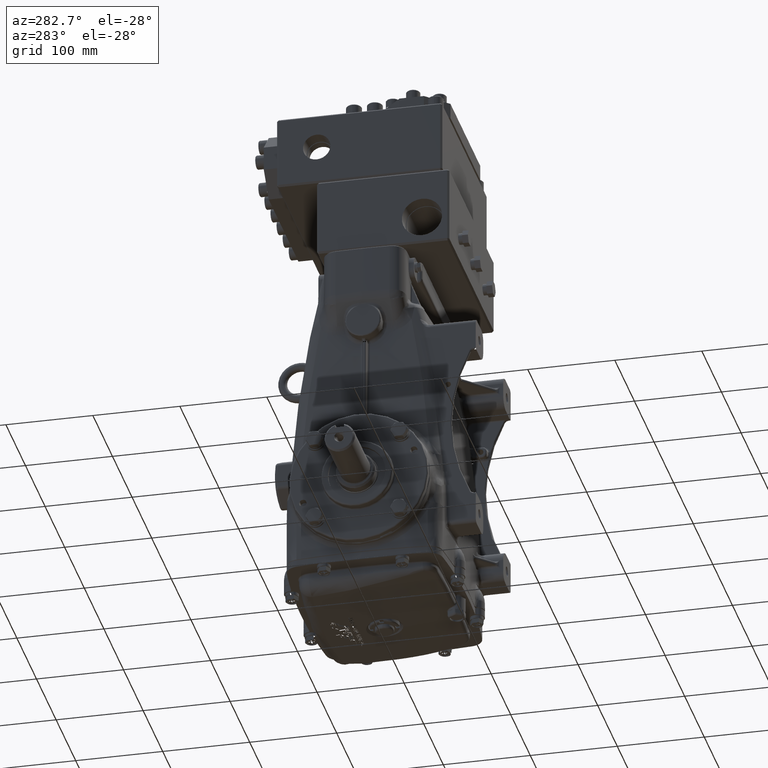
[diagram: clean part render]
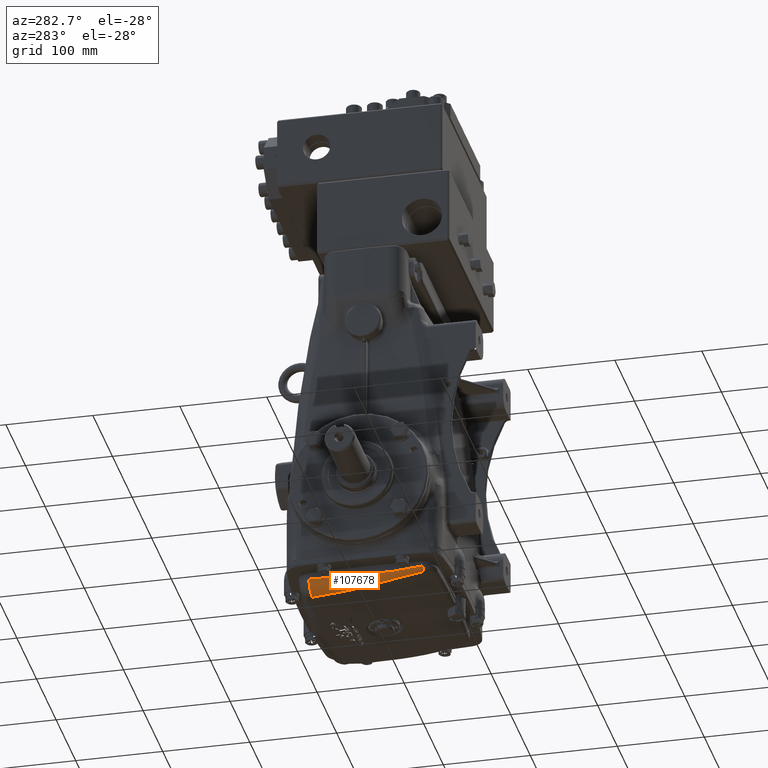
[diagram: same view with one face highlighted and labeled with its STEP entity id]
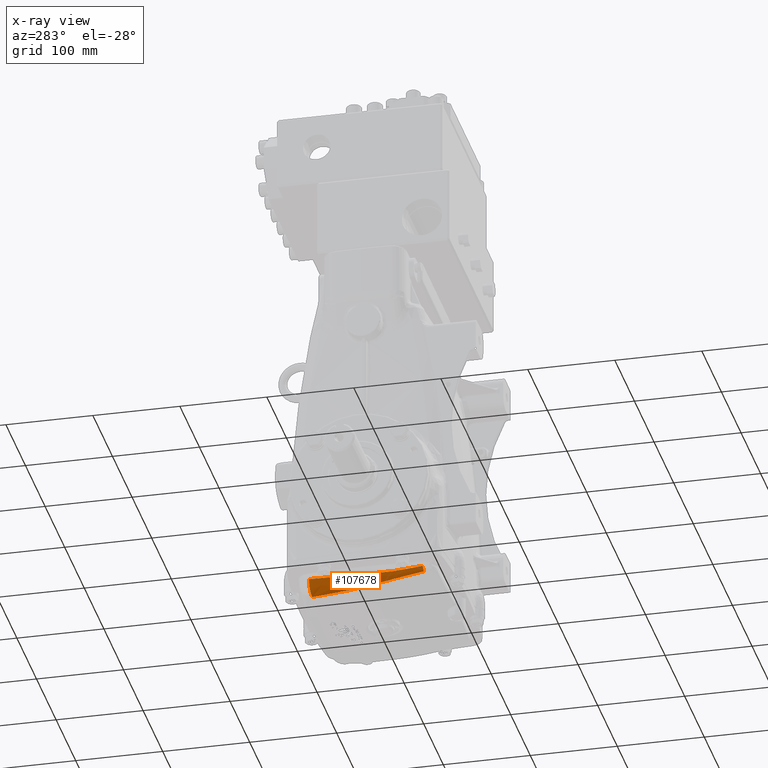
[diagram: x-ray of the same camera — body ghosted, the highlighted face saturated]
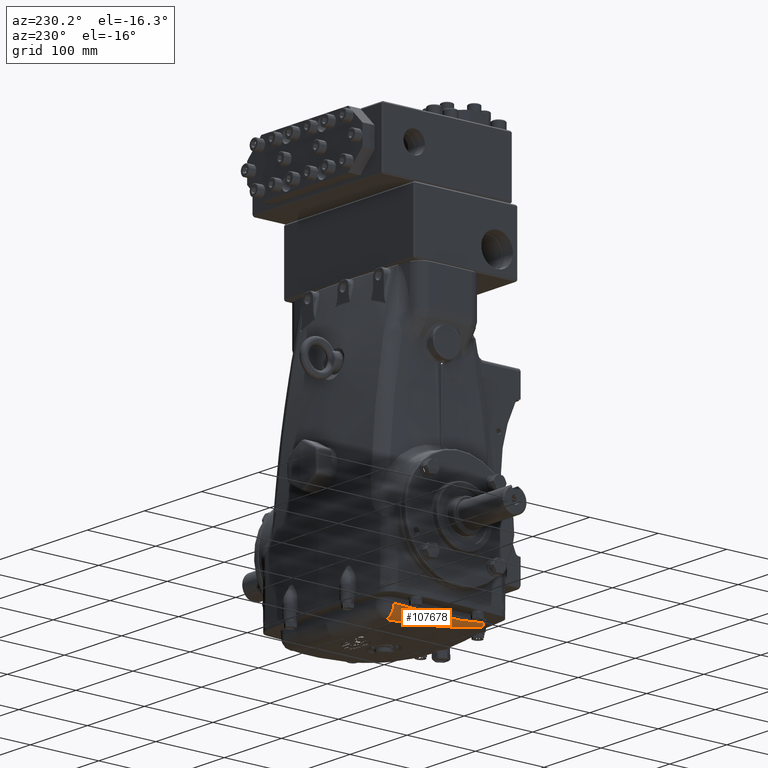
[diagram: same view with one face highlighted and labeled with its STEP entity id]
A machine part, auxiliary view. The second image highlights one B-rep face of the part: STEP entity #107678.
The next image is the same camera in x-ray: the body ghosted, the highlighted face saturated — about 0% of this face is hidden behind the body in this view.
A second angle (auxiliary view) of the same face is appended — the face is thin or edge-on in the first view.
In plain terms, the highlighted face is a freeform B-spline surface patch.
Its self-contained STEP definition (entity closure, byte-faithful):
#2496 = CARTESIAN_POINT ( 'NONE',  ( -3.587070781286576526, -2.592252362917436326, -4.185073238380467409 ) ) ;
#3679 = CARTESIAN_POINT ( 'NONE',  ( -3.786314677940371354, -2.143834321483438110, -4.077265623551389773 ) ) ;
#4257 = CARTESIAN_POINT ( 'NONE',  ( -3.857982078439456064, -0.4527785071414766604, -4.479125593149560380 ) ) ;
#4656 = B_SPLINE_CURVE_WITH_KNOTS ( 'NONE', 3,
 ( #71526, #107987, #26184, #62528, #99049, #17215, #53620, #90091 ),
 .UNSPECIFIED., .F., .F.,
 ( 4, 2, 2, 4 ),
 ( 0.4983226116818429419, 0.5000000000000004441, 0.7500000000000003331, 1.000000000000000000 ),
 .UNSPECIFIED. ) ;
#4852 = CARTESIAN_POINT ( 'NONE',  ( -3.303189708664001412, 1.681786985764487818, -4.686707106838921000 ) ) ;
#6855 = CARTESIAN_POINT ( 'NONE',  ( -3.622857648761417249, -2.165971908191560491, -4.268036637586034132 ) ) ;
#11149 = EDGE_CURVE ( 'NONE', #66246, #23216, #42347, .T. ) ;
#12615 = FACE_OUTER_BOUND ( 'NONE', #112485, .T. ) ;
#13202 = CARTESIAN_POINT ( 'NONE',  ( -3.784366073027685573, -2.172222874228491030, -4.239013733697134967 ) ) ;
#13798 = CARTESIAN_POINT ( 'NONE',  ( -3.558285079923245053, -0.4532861272314075429, -4.529290593408315857 ) ) ;
#15798 = CARTESIAN_POINT ( 'NONE',  ( -3.558285079923245053, -0.4532861272314075429, -4.529290593408315857 ) ) ;
#17215 = CARTESIAN_POINT ( 'NONE',  ( -3.813117716448717776, 1.718408939206714781, -4.090829031855981235 ) ) ;
#17316 = EDGE_CURVE ( 'NONE', #77778, #43779, #95647, .T. ) ;
#19638 = CARTESIAN_POINT ( 'NONE',  ( -3.849347285123557061, -0.8550887522340198110, -4.175133864225490044 ) ) ;
#21141 =( BOUNDED_CURVE ( )  B_SPLINE_CURVE ( 2, ( #47802, #84246, #2496 ),
 .UNSPECIFIED., .F., .F. ) 
 B_SPLINE_CURVE_WITH_KNOTS ( ( 3, 3 ),
 ( 0.0000000000000000000, 1.000000000000000000 ),
 .UNSPECIFIED. ) 
 CURVE ( )  GEOMETRIC_REPRESENTATION_ITEM ( )  RATIONAL_B_SPLINE_CURVE ( ( 1.000000000000000000, 0.7687512746421097942, 1.000000000000000000 ) ) 
 REPRESENTATION_ITEM ( '' )  );
#22167 = CARTESIAN_POINT ( 'NONE',  ( -3.786374246340548755, 2.143124763859187265, -4.069290335621762900 ) ) ;
#22743 = CARTESIAN_POINT ( 'NONE',  ( -3.622857648761417249, -2.165971908191560491, -4.268036637586034132 ) ) ;
#23216 = VERTEX_POINT ( 'NONE', #82351 ) ;
#24738 = CARTESIAN_POINT ( 'NONE',  ( -3.303189708664001412, 1.681786985764487818, -4.686707106838921000 ) ) ;
#25187 = B_SPLINE_CURVE_WITH_KNOTS ( 'NONE', 3,
 ( #70093, #106541, #24738, #61089, #97620, #15798, #52189, #88646, #6855, #43204 ),
 .UNSPECIFIED., .F., .F.,
 ( 4, 2, 2, 2, 4 ),
 ( 0.0000000000000000000, 0.2499999999999999445, 0.5000000000000000000, 0.7500000000000000000, 1.000000000000000000 ),
 .UNSPECIFIED. ) ;
#26184 = CARTESIAN_POINT ( 'NONE',  ( -3.858267308881741187, 0.005774387500164408771, -4.166740454674413563 ) ) ;
#28545 = CARTESIAN_POINT ( 'NONE',  ( -3.750621400122201798, -2.568999968406805223, -3.994999775048467594 ) ) ;
#31063 = CARTESIAN_POINT ( 'NONE',  ( -3.858145409280107074, 0.4382095441804221281, -4.156447505999788739 ) ) ;
#31156 = CARTESIAN_POINT ( 'NONE',  ( -3.749585912256805820, 2.581334332048506042, -4.600595598711054279 ) ) ;
#31639 = CARTESIAN_POINT ( 'NONE',  ( -3.786332936016810535, 2.145676386910618128, -4.610574395272067250 ) ) ;
#32405 = ORIENTED_EDGE ( 'NONE', *, *, #17316, .T. ) ;
#35783 = ORIENTED_EDGE ( 'NONE', *, *, #110233, .F. ) ;
#39996 = CARTESIAN_POINT ( 'NONE',  ( -3.813444459587515656, -1.713706081974387008, -4.125484843372965393 ) ) ;
#40597 = CARTESIAN_POINT ( 'NONE',  ( -3.858567620419324218, 0.4108275518639488699, -4.553702994134236626 ) ) ;
#41196 = CARTESIAN_POINT ( 'NONE',  ( -3.252549966431814266, 2.108784519530685131, -4.692117004519087864 ) ) ;
#42347 =( BOUNDED_CURVE ( )  B_SPLINE_CURVE ( 2, ( #112998, #31156, #67576 ),
 .UNSPECIFIED., .F., .F. ) 
 B_SPLINE_CURVE_WITH_KNOTS ( ( 3, 3 ),
 ( 0.0000000000000000000, 1.000000000000000000 ),
 .UNSPECIFIED. ) 
 CURVE ( )  GEOMETRIC_REPRESENTATION_ITEM ( )  RATIONAL_B_SPLINE_CURVE ( ( 1.000000000000000000, 0.7586053042103582111, 1.000000000000000000 ) ) 
 REPRESENTATION_ITEM ( '' )  );
#43204 = CARTESIAN_POINT ( 'NONE',  ( -3.587070781286576526, -2.592252362917436326, -4.185073238380467409 ) ) ;
#43779 = VERTEX_POINT ( 'NONE', #73500 ) ;
#45905 = ORIENTED_EDGE ( 'NONE', *, *, #91614, .T. ) ;
#47802 = CARTESIAN_POINT ( 'NONE',  ( -3.750621400122201798, -2.568999968406805223, -3.994999775048467594 ) ) ;
#49562 = CARTESIAN_POINT ( 'NONE',  ( -3.811775919021750170, -1.743341074874007468, -4.310460585365150976 ) ) ;
#50112 = VERTEX_POINT ( 'NONE', #56377 ) ;
#50161 = CARTESIAN_POINT ( 'NONE',  ( -3.465568033520770364, 0.4015294464267693542, -4.616969034055656174 ) ) ;
#52189 = CARTESIAN_POINT ( 'NONE',  ( -3.595150461650975959, -0.8814239703039772333, -4.473783318686258781 ) ) ;
#53620 = CARTESIAN_POINT ( 'NONE',  ( -3.786374246340548755, 2.143124763859187265, -4.069290335621762900 ) ) ;
#56003 = CARTESIAN_POINT ( 'NONE',  ( -3.858267483268824627, -0.4266842143578906676, -4.176873745868582510 ) ) ;
#56377 = CARTESIAN_POINT ( 'NONE',  ( -3.587070781286576526, -2.592252362917436326, -4.185073238380467409 ) ) ;
#58518 = CARTESIAN_POINT ( 'NONE',  ( -3.750621400122203131, 2.568999968406808776, -4.059710827512201803 ) ) ;
#59086 = CARTESIAN_POINT ( 'NONE',  ( -3.627418846885438253, -1.737789613606274042, -4.343148890057767275 ) ) ;
#61089 = CARTESIAN_POINT ( 'NONE',  ( -3.409742172155981077, 0.8281875570862192726, -4.649148070788859499 ) ) ;
#62218 =( BOUNDED_SURFACE ( )  B_SPLINE_SURFACE ( 2, 3, ( 
 ( #85446, #3679, #39996, #76473, #112895, #31063, #67478, #103967, #22167, #58518 ),
 ( #95019, #13202, #49562, #86032, #4257, #40597, #77060, #113477, #31639, #68058 ),
 ( #104544, #22743, #59086, #95607, #13798, #50161, #86622, #4852, #41196, #77652 ) ),
 .UNSPECIFIED., .F., .F., .F. ) 
 B_SPLINE_SURFACE_WITH_KNOTS ( ( 3, 3 ),
 ( 4, 2, 2, 2, 4 ),
 ( 0.0000000000000000000, 1.000000000000000000 ),
 ( -0.0008003282995024951774, 0.03221996846393488517, 0.06524026522737226552, 0.09826056199080965281, 0.1312808587542470262 ),
 .UNSPECIFIED. ) 
 GEOMETRIC_REPRESENTATION_ITEM ( )  RATIONAL_B_SPLINE_SURFACE ( (
 ( 1.000000000000000000, 1.000000000000000000, 1.000000000000000000, 1.000000000000000000, 1.000000000000000000, 1.000000000000000000, 1.000000000000000000, 1.000000000000000000, 1.000000000000000000, 1.000000000000000000),
 ( 0.7687512746421142351, 0.7679053314097404881, 0.7668311923220744175, 0.7645638122210512977, 0.7633697177363332198, 0.7612047652933120467, 0.7602338200490645903, 0.7588817157474476716, 0.7585014178634787996, 0.7586053042103582111),
 ( 1.000000000000000000, 1.000000000000000000, 1.000000000000000000, 1.000000000000000000, 1.000000000000000000, 1.000000000000000000, 1.000000000000000000, 1.000000000000000000, 1.000000000000000000, 1.000000000000000000) ) ) 
 REPRESENTATION_ITEM ( '' )  SURFACE ( )  );
#62220 = ORIENTED_EDGE ( 'NONE', *, *, #11149, .T. ) ;
#62528 = CARTESIAN_POINT ( 'NONE',  ( -3.858145409280107074, 0.4382095441804221281, -4.156447505999788739 ) ) ;
#64931 = CARTESIAN_POINT ( 'NONE',  ( -3.786314677940371354, -2.143834321483438110, -4.077265623551389773 ) ) ;
#66246 = VERTEX_POINT ( 'NONE', #74876 ) ;
#67478 = CARTESIAN_POINT ( 'NONE',  ( -3.849018650901141037, 0.8659924816696357164, -4.134440698416660176 ) ) ;
#67576 = CARTESIAN_POINT ( 'NONE',  ( -3.216478555086000668, 2.538454358272328459, -4.682249735505898514 ) ) ;
#68058 = CARTESIAN_POINT ( 'NONE',  ( -3.749585912256803155, 2.581334332048530911, -4.600595598711051615 ) ) ;
#70093 = CARTESIAN_POINT ( 'NONE',  ( -3.216478555086000668, 2.538454358272328459, -4.682249735505898514 ) ) ;
#71526 = CARTESIAN_POINT ( 'NONE',  ( -3.858267714659125769, 9.933872777787090664E-06, -4.166876056534943196 ) ) ;
#73500 = CARTESIAN_POINT ( 'NONE',  ( -3.858267714659125769, 9.933872777787090664E-06, -4.166876056534943196 ) ) ;
#74876 = CARTESIAN_POINT ( 'NONE',  ( -3.750621400122204463, 2.568999968406809220, -4.059710827512201803 ) ) ;
#76473 = CARTESIAN_POINT ( 'NONE',  ( -3.849468136513261918, -0.8521985870179293876, -4.175300986257751035 ) ) ;
#77060 = CARTESIAN_POINT ( 'NONE',  ( -3.849754908851117818, 0.8435873613635843649, -4.579659930279360580 ) ) ;
#77652 = CARTESIAN_POINT ( 'NONE',  ( -3.216478555086000224, 2.538454358272328459, -4.682249735505898514 ) ) ;
#77778 = VERTEX_POINT ( 'NONE', #82718 ) ;
#80282 = ORIENTED_EDGE ( 'NONE', *, *, #81797, .T. ) ;
#81797 = EDGE_CURVE ( 'NONE', #43779, #66246, #4656, .T. ) ;
#82351 = CARTESIAN_POINT ( 'NONE',  ( -3.216478555086000668, 2.538454358272328459, -4.682249735505898514 ) ) ;
#82718 = CARTESIAN_POINT ( 'NONE',  ( -3.750621400122201798, -2.568999968406805223, -3.994999775048467594 ) ) ;
#84246 = CARTESIAN_POINT ( 'NONE',  ( -3.748012994205316861, -2.600070373168794635, -4.155819944545169342 ) ) ;
#85446 = CARTESIAN_POINT ( 'NONE',  ( -3.750621400122204463, -2.568999968406816325, -3.995049615969942014 ) ) ;
#86032 = CARTESIAN_POINT ( 'NONE',  ( -3.848583525291634722, -0.8836223085059041749, -4.430503341263071881 ) ) ;
#86622 = CARTESIAN_POINT ( 'NONE',  ( -3.409742172155981077, 0.8281875570862192726, -4.649148070788859499 ) ) ;
#88646 = CARTESIAN_POINT ( 'NONE',  ( -3.627418846885438253, -1.737789613606274042, -4.343148890057767275 ) ) ;
#90091 = CARTESIAN_POINT ( 'NONE',  ( -3.750621400122204463, 2.568999968406809220, -4.059710827512201803 ) ) ;
#91614 = EDGE_CURVE ( 'NONE', #23216, #50112, #25187, .T. ) ;
#92509 = CARTESIAN_POINT ( 'NONE',  ( -3.858267714659125769, 9.933872777787090664E-06, -4.166876056534943196 ) ) ;
#95019 = CARTESIAN_POINT ( 'NONE',  ( -3.748012994205316417, -2.600070373168791971, -4.155819944545164901 ) ) ;
#95607 = CARTESIAN_POINT ( 'NONE',  ( -3.595150461650975959, -0.8814239703039772333, -4.473783318686258781 ) ) ;
#95647 = B_SPLINE_CURVE_WITH_KNOTS ( 'NONE', 3,
 ( #28545, #64931, #101429, #19638, #56003, #92509 ),
 .UNSPECIFIED., .F., .F.,
 ( 4, 2, 4 ),
 ( 0.0000000000000000000, 0.2500000000000002776, 0.4983226116818429419 ),
 .UNSPECIFIED. ) ;
#97620 = CARTESIAN_POINT ( 'NONE',  ( -3.465568033520770364, 0.4015294464267693542, -4.616969034055656174 ) ) ;
#99049 = CARTESIAN_POINT ( 'NONE',  ( -3.849018650901141037, 0.8659924816696357164, -4.134440698416660176 ) ) ;
#101429 = CARTESIAN_POINT ( 'NONE',  ( -3.813444459587515656, -1.713706081974387008, -4.125484843372965393 ) ) ;
#103967 = CARTESIAN_POINT ( 'NONE',  ( -3.813117716448717776, 1.718408939206714781, -4.090829031855981235 ) ) ;
#104544 = CARTESIAN_POINT ( 'NONE',  ( -3.587070781286578747, -2.592252362917425224, -4.185073238380468297 ) ) ;
#106541 = CARTESIAN_POINT ( 'NONE',  ( -3.252549966431814266, 2.108784519530685131, -4.692117004519087864 ) ) ;
#107678 = ADVANCED_FACE ( 'NONE', ( #12615 ), #62218, .F. ) ;
#107987 = CARTESIAN_POINT ( 'NONE',  ( -3.858267714334776777, 0.002892199707571513345, -4.166808523386766439 ) ) ;
#110233 = EDGE_CURVE ( 'NONE', #77778, #50112, #21141, .T. ) ;
#112485 = EDGE_LOOP ( 'NONE', ( #62220, #45905, #35783, #32405, #80282 ) ) ;
#112895 = CARTESIAN_POINT ( 'NONE',  ( -3.858387583601862403, -0.4208965510671880961, -4.176896201735643466 ) ) ;
#112998 = CARTESIAN_POINT ( 'NONE',  ( -3.750621400122204463, 2.568999968406809220, -4.059710827512201803 ) ) ;
#113477 = CARTESIAN_POINT ( 'NONE',  ( -3.813636668103682847, 1.711010898641568412, -4.608108969745897454 ) ) ;